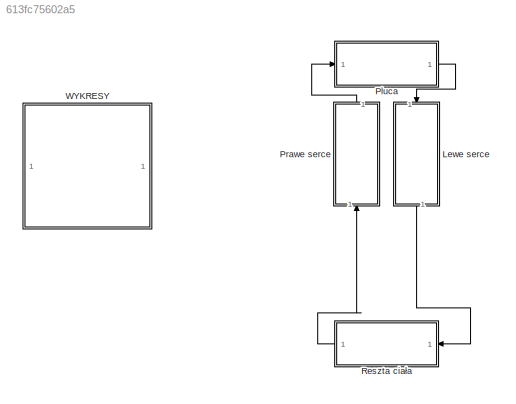
MODEL slx_613fc75602a5
KIND model
CONFIG AbsTol = 1e-06
CONFIG EnableMultiTasking = off
CONFIG FixedStep = auto
CONFIG MaxStep = 0.01
CONFIG MinStep = auto
CONFIG RelTol = 1e-06
CONFIG SampleTimeConstraint = Unconstrained
CONFIG Solver = ode23s
CONFIG SolverName = ode23s
CONFIG StartTime = 0.0
CONFIG StopTime = 11
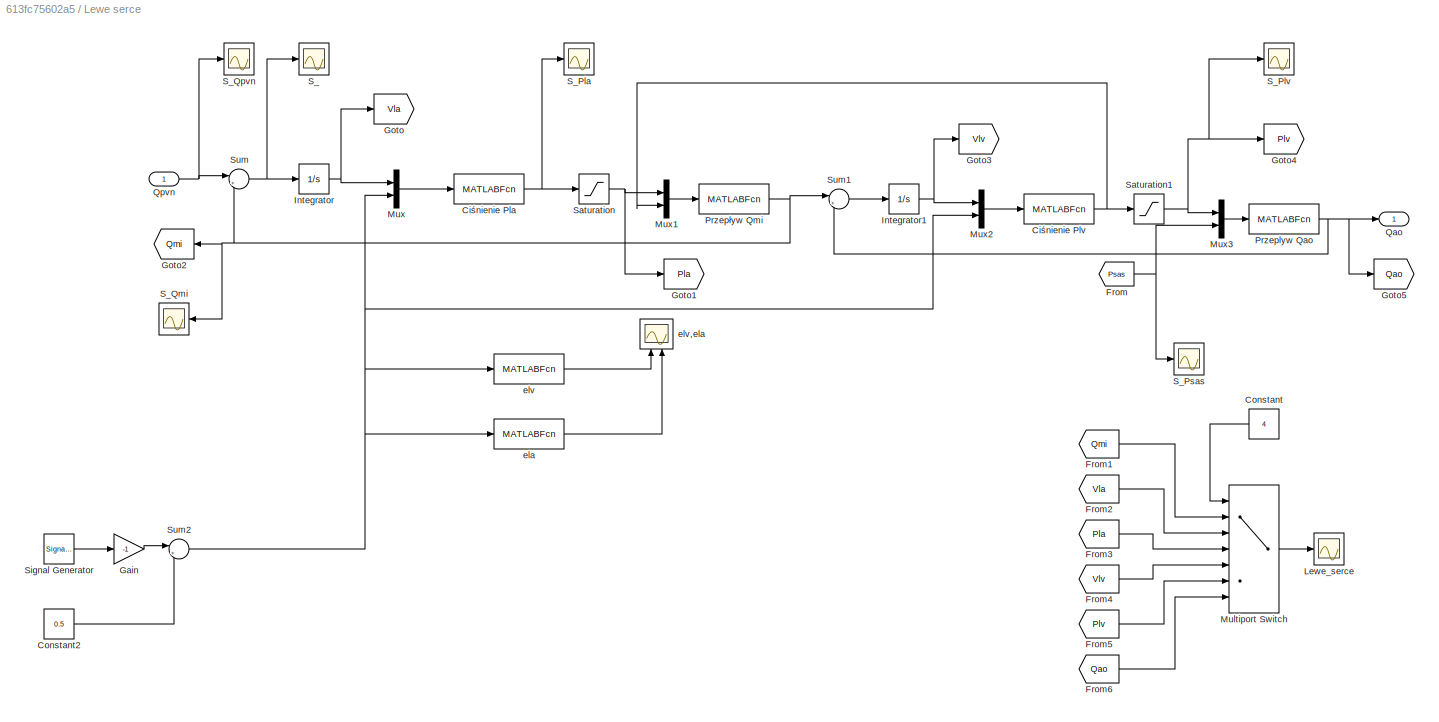
BLOCK [SubSystem] Lewe serce 
  Ports = [1, 1]
  RequestExecContextInheritance = off
BLOCK [MATLABFcn] Lewe serce /Ciśnienie Pla
  MATLABFcn = Pla_function
  Ports = [1, 1]
BLOCK [MATLABFcn] Lewe serce /Ciśnienie Plv 
  MATLABFcn = Plv_function
  Ports = [1, 1]
BLOCK [Constant] Lewe serce /Constant
  Value = 4
BLOCK [Constant] Lewe serce /Constant2
  Value = 0.5
BLOCK [From] Lewe serce /From
  GotoTag = Psas
  TagVisibility = global
BLOCK [From] Lewe serce /From1
  GotoTag = Qmi
  TagVisibility = global
BLOCK [From] Lewe serce /From2
  GotoTag = Vla
  TagVisibility = global
BLOCK [From] Lewe serce /From3
  GotoTag = Pla
  TagVisibility = global
BLOCK [From] Lewe serce /From4
  GotoTag = Vlv
  TagVisibility = global
BLOCK [From] Lewe serce /From5
  GotoTag = Plv
  TagVisibility = global
BLOCK [From] Lewe serce /From6
  GotoTag = Qao
  TagVisibility = global
BLOCK [Gain] Lewe serce /Gain
  Gain = -1
  OutDataTypeStr = Inherit: Inherit via internal rule
  ParamDataTypeStr = Inherit: Inherit via internal rule
  SaturateOnIntegerOverflow = off
BLOCK [Goto] Lewe serce /Goto
  GotoTag = Vla
  TagVisibility = global
BLOCK [Goto] Lewe serce /Goto1
  GotoTag = Pla
  TagVisibility = global
BLOCK [Goto] Lewe serce /Goto2
  GotoTag = Qmi
  TagVisibility = global
BLOCK [Goto] Lewe serce /Goto3
  GotoTag = Vlv
  TagVisibility = global
BLOCK [Goto] Lewe serce /Goto4
  GotoTag = Plv
  TagVisibility = global
BLOCK [Goto] Lewe serce /Goto5
  GotoTag = Qao
  TagVisibility = global
BLOCK [Integrator] Lewe serce /Integrator
  InitialCondition = 4
  Ports = [1, 1]
BLOCK [Integrator] Lewe serce /Integrator1
  InitialCondition = 500
  Ports = [1, 1]
BLOCK [Scope] Lewe serce /Lewe_serce
  Floating = off
  NumInputPorts = 1
  Ports = [1]
  ScopeSpecificationString = Simulink.scopes.TimeScopeBlockCfg('CurrentConfiguration', extmgr.ConfigurationSet(extmgr.Configuration('Core','General UI',true),extmgr.Configuration('Core','Source UI',true),extmgr.Configuration('Sources','WiredSimulink',true,'DataLoggingVariableName','ScopeData2'),extmgr.Configuration('Visuals','Time Domain',true,'SerializedDisplays',{struct('MinYLimReal','400.00000','MaxYLimReal','600.00000','Y...<+1441ch>
BLOCK [MultiPortSwitch] Lewe serce /Multiport Switch
  InputSameDT = off
  Inputs = 6
  OutMax = [6]
  OutMin = [1]
  Ports = [7, 1]
  SaturateOnIntegerOverflow = off
BLOCK [Mux] Lewe serce /Mux
  DisplayOption = bar
  Inputs = 2
  Ports = [2, 1]
BLOCK [Mux] Lewe serce /Mux1
  DisplayOption = bar
  Inputs = 2
  Ports = [2, 1]
BLOCK [Mux] Lewe serce /Mux2
  DisplayOption = bar
  Inputs = 2
  Ports = [2, 1]
BLOCK [Mux] Lewe serce /Mux3
  DisplayOption = bar
  Inputs = 2
  Ports = [2, 1]
BLOCK [MATLABFcn] Lewe serce /Przeplyw Qao
  MATLABFcn = Qao_function
  Ports = [1, 1]
BLOCK [MATLABFcn] Lewe serce /Przepływ Qmi
  MATLABFcn = Qmi_function
  Ports = [1, 1]
BLOCK [Outport] Lewe serce /Qao
  IconDisplay = Port number
BLOCK [Inport] Lewe serce /Qpvn
  IconDisplay = Port number
BLOCK [Scope] Lewe serce /S_
  Floating = off
  NumInputPorts = 1
  Ports = [1]
  ScopeSpecificationString = Simulink.scopes.TimeScopeBlockCfg('CurrentConfiguration', extmgr.ConfigurationSet(extmgr.Configuration('Core','General UI',true),extmgr.Configuration('Core','Source UI',true),extmgr.Configuration('Sources','WiredSimulink',true,'DataLoggingVariableName','ScopeData6'),extmgr.Configuration('Visuals','Time Domain',true,'SerializedDisplays',{struct('MinYLimReal','-15000.3206','MaxYLimReal','1669.55204'...<+1463ch>
BLOCK [Scope] Lewe serce /S_Pla
  Floating = off
  NumInputPorts = 1
  Ports = [1]
  ScopeSpecificationString = Simulink.scopes.TimeScopeBlockCfg('CurrentConfiguration', extmgr.ConfigurationSet(extmgr.Configuration('Core','General UI',true),extmgr.Configuration('Core','Source UI',true),extmgr.Configuration('Sources','WiredSimulink',true,'DataLoggingVariableName','ScopeData1'),extmgr.Configuration('Visuals','Time Domain',true,'SerializedDisplays',{struct('MinYLimReal','-1.02496','MaxYLimReal','14.64209','YLa...<+1478ch>
BLOCK [Scope] Lewe serce /S_Plv
  Floating = off
  NumInputPorts = 1
  Ports = [1]
  ScopeSpecificationString = Simulink.scopes.TimeScopeBlockCfg('CurrentConfiguration', extmgr.ConfigurationSet(extmgr.Configuration('Core','General UI',true),extmgr.Configuration('Core','Source UI',true),extmgr.Configuration('Sources','WiredSimulink',true,'DataLoggingVariableName','ScopeData1'),extmgr.Configuration('Visuals','Time Domain',true,'TimeAxisLabels','All','SerializedDisplays',{struct('MinYLimReal','40.5','MaxYLimRe...<+1443ch>
BLOCK [Scope] Lewe serce /S_Psas
  Floating = off
  NumInputPorts = 1
  Ports = [1]
  ScopeSpecificationString = Simulink.scopes.TimeScopeBlockCfg('CurrentConfiguration', extmgr.ConfigurationSet(extmgr.Configuration('Core','General UI',true),extmgr.Configuration('Core','Source UI',true),extmgr.Configuration('Sources','WiredSimulink',true,'DataLoggingVariableName','ScopeData2'),extmgr.Configuration('Visuals','Time Domain',true,'SerializedDisplays',{struct('MinYLimReal','-0.11697','MaxYLimReal','1.0527','YLabe...<+1415ch>
BLOCK [Scope] Lewe serce /S_Qmi
  Floating = off
  NumInputPorts = 1
  Ports = [1]
  ScopeSpecificationString = Simulink.scopes.TimeScopeBlockCfg('CurrentConfiguration', extmgr.ConfigurationSet(extmgr.Configuration('Core','General UI',true),extmgr.Configuration('Core','Source UI',true),extmgr.Configuration('Sources','WiredSimulink',true,'DataLoggingVariableName','ScopeData6'),extmgr.Configuration('Visuals','Time Domain',true,'SerializedDisplays',{struct('MinYLimReal','-32.25331','MaxYLimReal','290.27979','Y...<+1454ch>
BLOCK [Scope] Lewe serce /S_Qpvn
  Floating = off
  NumInputPorts = 1
  Ports = [1]
  ScopeSpecificationString = Simulink.scopes.TimeScopeBlockCfg('CurrentConfiguration', extmgr.ConfigurationSet(extmgr.Configuration('Core','General UI',true),extmgr.Configuration('Core','Source UI',true),extmgr.Configuration('Sources','WiredSimulink',true,'DataLoggingVariableName','ScopeData1'),extmgr.Configuration('Visuals','Time Domain',true,'SerializedDisplays',{struct('MinYLimReal','-15009.64219','MaxYLimReal','1753.44634...<+1487ch>
BLOCK [Saturate] Lewe serce /Saturation
  InputPortMap = u0
  LowerLimit = 0
  Ports = [1, 1]
  UpperLimit = inf
BLOCK [Saturate] Lewe serce /Saturation1
  InputPortMap = u0
  LowerLimit = 0
  Ports = [1, 1]
  UpperLimit = inf
BLOCK [SignalGenerator] Lewe serce /Signal Generator
  Amplitude = 0.5
  Ports = [0, 1]
  WaveForm = sawtooth
BLOCK [Sum] Lewe serce /Sum
  IconShape = round
  InputSameDT = off
  Inputs = |+-
  OutDataTypeStr = Inherit: Inherit via internal rule
  Ports = [2, 1]
  SaturateOnIntegerOverflow = off
BLOCK [Sum] Lewe serce /Sum1
  IconShape = round
  InputSameDT = off
  Inputs = |+-
  OutDataTypeStr = Inherit: Inherit via internal rule
  Ports = [2, 1]
  SaturateOnIntegerOverflow = off
BLOCK [Sum] Lewe serce /Sum2
  IconShape = round
  InputSameDT = off
  Inputs = |++
  OutDataTypeStr = Inherit: Inherit via internal rule
  Ports = [2, 1]
  SaturateOnIntegerOverflow = off
BLOCK [MATLABFcn] Lewe serce /ela
  MATLABFcn = ela_function
  Ports = [1, 1]
BLOCK [MATLABFcn] Lewe serce /elv
  MATLABFcn = elv_function
  Ports = [1, 1]
BLOCK [Scope] Lewe serce /elv,ela
  Floating = off
  NumInputPorts = 2
  Ports = [2]
  ScopeSpecificationString = Simulink.scopes.TimeScopeBlockCfg('CurrentConfiguration', extmgr.ConfigurationSet(extmgr.Configuration('Core','General UI',true),extmgr.Configuration('Core','Source UI',true),extmgr.Configuration('Sources','WiredSimulink',true,'DataLoggingVariableName','ScopeData5'),extmgr.Configuration('Visuals','Time Domain',true,'SerializedDisplays',{struct('MinYLimReal','-0.1999','MaxYLimReal','2.79912','YLabe...<+1393ch>
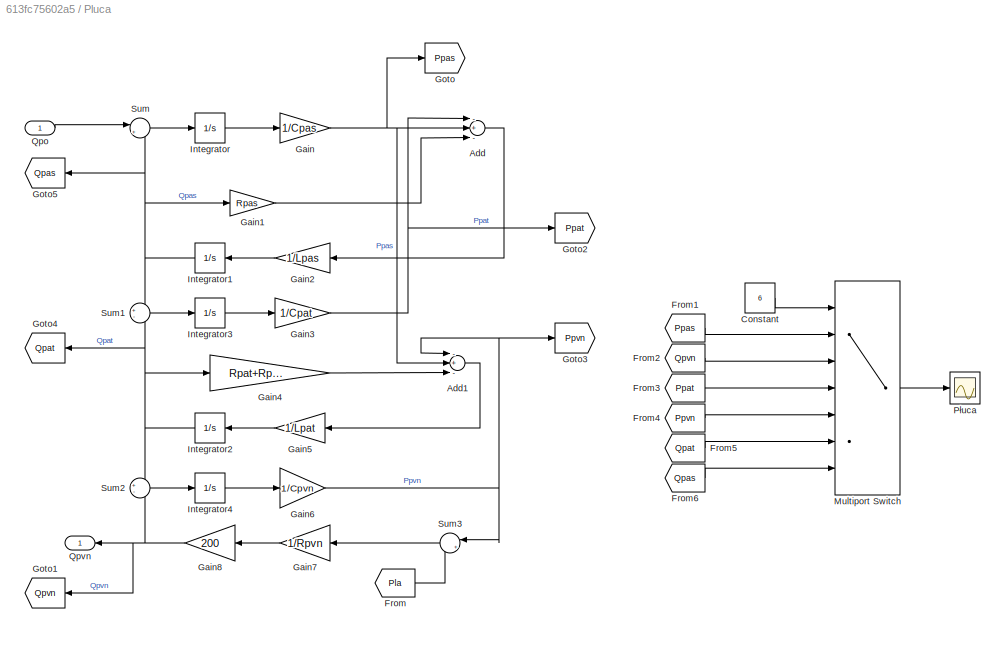
BLOCK [SubSystem] Pluca 
  Ports = [1, 1]
  RequestExecContextInheritance = off
BLOCK [Sum] Pluca /Add
  InputSameDT = off
  Inputs = -+-
  OutDataTypeStr = Inherit: Inherit via internal rule
  Ports = [3, 1]
  SaturateOnIntegerOverflow = off
BLOCK [Sum] Pluca /Add1
  InputSameDT = off
  Inputs = -+-
  OutDataTypeStr = Inherit: Inherit via internal rule
  Ports = [3, 1]
  SaturateOnIntegerOverflow = off
BLOCK [Constant] Pluca /Constant
  Value = 6
BLOCK [From] Pluca /From
  GotoTag = Pla
  TagVisibility = global
BLOCK [From] Pluca /From1
  GotoTag = Ppas
  TagVisibility = global
BLOCK [From] Pluca /From2
  GotoTag = Qpvn
  TagVisibility = global
BLOCK [From] Pluca /From3
  GotoTag = Ppat
  TagVisibility = global
BLOCK [From] Pluca /From4
  GotoTag = Ppvn
  TagVisibility = global
BLOCK [From] Pluca /From5
  GotoTag = Qpat
  TagVisibility = global
BLOCK [From] Pluca /From6
  GotoTag = Qpas
  TagVisibility = global
BLOCK [Gain] Pluca /Gain
  Gain = 1/Cpas
  OutDataTypeStr = Inherit: Inherit via internal rule
  ParamDataTypeStr = Inherit: Inherit via internal rule
  SaturateOnIntegerOverflow = off
BLOCK [Gain] Pluca /Gain1
  Gain = Rpas
  OutDataTypeStr = Inherit: Inherit via internal rule
  ParamDataTypeStr = Inherit: Inherit via internal rule
  SaturateOnIntegerOverflow = off
BLOCK [Gain] Pluca /Gain2
  Gain = 1/Lpas
  OutDataTypeStr = Inherit: Inherit via internal rule
  ParamDataTypeStr = Inherit: Inherit via internal rule
  SaturateOnIntegerOverflow = off
BLOCK [Gain] Pluca /Gain3
  Gain = 1/Cpat
  OutDataTypeStr = Inherit: Inherit via internal rule
  ParamDataTypeStr = Inherit: Inherit via internal rule
  SaturateOnIntegerOverflow = off
BLOCK [Gain] Pluca /Gain4
  Gain = Rpat+Rpar+Rpcp
  OutDataTypeStr = Inherit: Inherit via internal rule
  ParamDataTypeStr = Inherit: Inherit via internal rule
  SaturateOnIntegerOverflow = off
BLOCK [Gain] Pluca /Gain5
  Gain = 1/Lpat
  OutDataTypeStr = Inherit: Inherit via internal rule
  ParamDataTypeStr = Inherit: Inherit via internal rule
  SaturateOnIntegerOverflow = off
BLOCK [Gain] Pluca /Gain6
  Gain = 1/Cpvn
  OutDataTypeStr = Inherit: Inherit via internal rule
  ParamDataTypeStr = Inherit: Inherit via internal rule
  SaturateOnIntegerOverflow = off
BLOCK [Gain] Pluca /Gain7
  Gain = 1/Rpvn
  OutDataTypeStr = Inherit: Inherit via internal rule
  ParamDataTypeStr = Inherit: Inherit via internal rule
  SaturateOnIntegerOverflow = off
BLOCK [Gain] Pluca /Gain8
  Gain = 200
  OutDataTypeStr = Inherit: Inherit via internal rule
  ParamDataTypeStr = Inherit: Inherit via internal rule
  SaturateOnIntegerOverflow = off
BLOCK [Goto] Pluca /Goto
  GotoTag = Ppas
  TagVisibility = global
BLOCK [Goto] Pluca /Goto1
  GotoTag = Qpvn
  TagVisibility = global
BLOCK [Goto] Pluca /Goto2
  GotoTag = Ppat
  TagVisibility = global
BLOCK [Goto] Pluca /Goto3
  GotoTag = Ppvn
  TagVisibility = global
BLOCK [Goto] Pluca /Goto4
  GotoTag = Qpat
  TagVisibility = global
BLOCK [Goto] Pluca /Goto5
  GotoTag = Qpas
  TagVisibility = global
BLOCK [Integrator] Pluca /Integrator
  InitialCondition = 30
  Ports = [1, 1]
BLOCK [Integrator] Pluca /Integrator1
  Ports = [1, 1]
BLOCK [Integrator] Pluca /Integrator2
  Ports = [1, 1]
BLOCK [Integrator] Pluca /Integrator3
  InitialCondition = 30
  Ports = [1, 1]
BLOCK [Integrator] Pluca /Integrator4
  InitialCondition = 8
  Ports = [1, 1]
BLOCK [MultiPortSwitch] Pluca /Multiport Switch
  InputSameDT = off
  Inputs = 6
  OutMax = [6]
  OutMin = [1]
  Ports = [7, 1]
  SaturateOnIntegerOverflow = off
BLOCK [Scope] Pluca /Płuca
  Floating = off
  NumInputPorts = 1
  Ports = [1]
  ScopeSpecificationString = Simulink.scopes.TimeScopeBlockCfg('CurrentConfiguration', extmgr.ConfigurationSet(extmgr.Configuration('Core','General UI',true),extmgr.Configuration('Core','Source UI',true),extmgr.Configuration('Sources','WiredSimulink',true,'DataLoggingVariableName','ScopeData3'),extmgr.Configuration('Visuals','Time Domain',true,'SerializedDisplays',{struct('MinYLimReal','-2799.90325','MaxYLimReal','9613.33934'...<+1452ch>
BLOCK [Inport] Pluca /Qpo
  IconDisplay = Port number
BLOCK [Outport] Pluca /Qpvn
  IconDisplay = Port number
BLOCK [Sum] Pluca /Sum
  IconShape = round
  InputSameDT = off
  Inputs = |+-
  OutDataTypeStr = Inherit: Inherit via internal rule
  Ports = [2, 1]
  SaturateOnIntegerOverflow = off
BLOCK [Sum] Pluca /Sum1
  IconShape = round
  InputSameDT = off
  Inputs = +-
  OutDataTypeStr = Inherit: Inherit via internal rule
  Ports = [2, 1]
  SaturateOnIntegerOverflow = off
BLOCK [Sum] Pluca /Sum2
  IconShape = round
  InputSameDT = off
  Inputs = +-
  OutDataTypeStr = Inherit: Inherit via internal rule
  Ports = [2, 1]
  SaturateOnIntegerOverflow = off
BLOCK [Sum] Pluca /Sum3
  IconShape = round
  InputSameDT = off
  Inputs = |+-
  OutDataTypeStr = Inherit: Inherit via internal rule
  Ports = [2, 1]
  SaturateOnIntegerOverflow = off
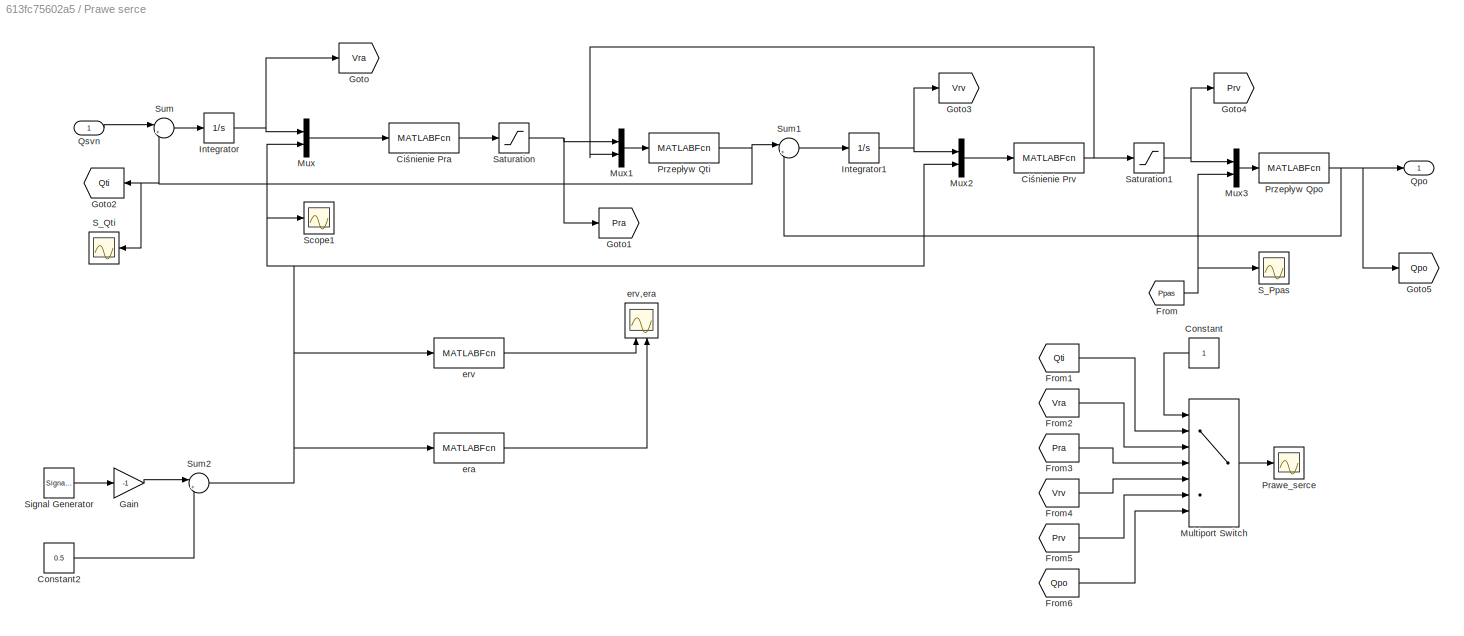
BLOCK [SubSystem] Prawe serce 
  Ports = [1, 1]
  RequestExecContextInheritance = off
BLOCK [MATLABFcn] Prawe serce /Ciśnienie Pra 
  MATLABFcn = Pra_function
  Ports = [1, 1]
BLOCK [MATLABFcn] Prawe serce /Ciśnienie Prv
  MATLABFcn = Prv_function
  Ports = [1, 1]
BLOCK [Constant] Prawe serce /Constant
BLOCK [Constant] Prawe serce /Constant2
  Value = 0.5
BLOCK [From] Prawe serce /From
  GotoTag = Ppas
  TagVisibility = global
BLOCK [From] Prawe serce /From1
  GotoTag = Qti
  TagVisibility = global
BLOCK [From] Prawe serce /From2
  GotoTag = Vra
  TagVisibility = global
BLOCK [From] Prawe serce /From3
  GotoTag = Pra
  TagVisibility = global
BLOCK [From] Prawe serce /From4
  GotoTag = Vrv
  TagVisibility = global
BLOCK [From] Prawe serce /From5
  GotoTag = Prv
  TagVisibility = global
BLOCK [From] Prawe serce /From6
  GotoTag = Qpo
  TagVisibility = global
BLOCK [Gain] Prawe serce /Gain
  Gain = -1
  OutDataTypeStr = Inherit: Inherit via internal rule
  ParamDataTypeStr = Inherit: Inherit via internal rule
  SaturateOnIntegerOverflow = off
BLOCK [Goto] Prawe serce /Goto
  GotoTag = Vra
  TagVisibility = global
BLOCK [Goto] Prawe serce /Goto1
  GotoTag = Pra
  TagVisibility = global
BLOCK [Goto] Prawe serce /Goto2
  GotoTag = Qti
  TagVisibility = global
BLOCK [Goto] Prawe serce /Goto3
  GotoTag = Vrv
  TagVisibility = global
BLOCK [Goto] Prawe serce /Goto4
  GotoTag = Prv
  TagVisibility = global
BLOCK [Goto] Prawe serce /Goto5
  GotoTag = Qpo
  TagVisibility = global
BLOCK [Integrator] Prawe serce /Integrator
  InitialCondition = 4
  Ports = [1, 1]
BLOCK [Integrator] Prawe serce /Integrator1
  InitialCondition = 400
  Ports = [1, 1]
BLOCK [MultiPortSwitch] Prawe serce /Multiport Switch
  InputSameDT = off
  Inputs = 6
  OutMax = [6]
  OutMin = [1]
  Ports = [7, 1]
  SaturateOnIntegerOverflow = off
BLOCK [Mux] Prawe serce /Mux
  DisplayOption = bar
  Inputs = 2
  Ports = [2, 1]
BLOCK [Mux] Prawe serce /Mux1
  DisplayOption = bar
  Inputs = 2
  Ports = [2, 1]
BLOCK [Mux] Prawe serce /Mux2
  DisplayOption = bar
  Inputs = 2
  Ports = [2, 1]
BLOCK [Mux] Prawe serce /Mux3
  DisplayOption = bar
  Inputs = 2
  Ports = [2, 1]
BLOCK [Scope] Prawe serce /Prawe_serce
  Floating = off
  NumInputPorts = 1
  Ports = [1]
  ScopeSpecificationString = Simulink.scopes.TimeScopeBlockCfg('CurrentConfiguration', extmgr.ConfigurationSet(extmgr.Configuration('Core','General UI',true),extmgr.Configuration('Core','Source UI',true),extmgr.Configuration('Sources','WiredSimulink',true,'DataLoggingVariableName','ScopeData1'),extmgr.Configuration('Visuals','Time Domain',true,'SerializedDisplays',{struct('MinYLimReal','-31.62278','MaxYLimReal','284.60499','Y...<+1458ch>
BLOCK [MATLABFcn] Prawe serce /Przepływ Qpo
  MATLABFcn = Qpo_function
  Ports = [1, 1]
BLOCK [MATLABFcn] Prawe serce /Przepływ Qti
  MATLABFcn = Qti_function
  Ports = [1, 1]
BLOCK [Outport] Prawe serce /Qpo
  IconDisplay = Port number
BLOCK [Inport] Prawe serce /Qsvn
  IconDisplay = Port number
BLOCK [Scope] Prawe serce /S_Ppas
  Floating = off
  NumInputPorts = 1
  Ports = [1]
  ScopeSpecificationString = Simulink.scopes.TimeScopeBlockCfg('CurrentConfiguration', extmgr.ConfigurationSet(extmgr.Configuration('Core','General UI',true),extmgr.Configuration('Core','Source UI',true),extmgr.Configuration('Sources','WiredSimulink',true,'DataLoggingVariableName','ScopeData4'),extmgr.Configuration('Visuals','Time Domain',true,'SerializedDisplays',{struct('MinYLimReal','27.13567','MaxYLimReal','30.99403','YLa...<+1446ch>
BLOCK [Scope] Prawe serce /S_Qti
  Floating = off
  NumInputPorts = 1
  Ports = [1]
  ScopeSpecificationString = Simulink.scopes.TimeScopeBlockCfg('CurrentConfiguration', extmgr.ConfigurationSet(extmgr.Configuration('Core','General UI',true),extmgr.Configuration('Core','Source UI',true),extmgr.Configuration('Sources','WiredSimulink',true,'DataLoggingVariableName','ScopeData1'),extmgr.Configuration('Visuals','Time Domain',true,'SerializedDisplays',{struct('MinYLimReal','-60.43444','MaxYLimReal','543.90996','Y...<+1454ch>
BLOCK [Saturate] Prawe serce /Saturation
  InputPortMap = u0
  LinearizeAsGain = off
  LowerLimit = 0
  Ports = [1, 1]
  UpperLimit = inf
BLOCK [Saturate] Prawe serce /Saturation1
  InputPortMap = u0
  LowerLimit = 0
  Ports = [1, 1]
  UpperLimit = inf
BLOCK [Scope] Prawe serce /Scope1
  Floating = off
  NumInputPorts = 1
  Ports = [1]
  ScopeSpecificationString = Simulink.scopes.TimeScopeBlockCfg('CurrentConfiguration', extmgr.ConfigurationSet(extmgr.Configuration('Core','General UI',true),extmgr.Configuration('Core','Source UI',true),extmgr.Configuration('Sources','WiredSimulink',true,'DataLoggingVariableName','ScopeData1'),extmgr.Configuration('Visuals','Time Domain',true,'SerializedDisplays',{struct('MinYLimReal','-1.00000','MaxYLimReal','1.00000','YLab...<+1426ch>
BLOCK [SignalGenerator] Prawe serce /Signal Generator
  Amplitude = 0.5
  Ports = [0, 1]
  WaveForm = sawtooth
BLOCK [Sum] Prawe serce /Sum
  IconShape = round
  InputSameDT = off
  Inputs = |+-
  OutDataTypeStr = Inherit: Inherit via internal rule
  Ports = [2, 1]
  SaturateOnIntegerOverflow = off
BLOCK [Sum] Prawe serce /Sum1
  IconShape = round
  InputSameDT = off
  Inputs = |+-
  OutDataTypeStr = Inherit: Inherit via internal rule
  Ports = [2, 1]
  SaturateOnIntegerOverflow = off
BLOCK [Sum] Prawe serce /Sum2
  IconShape = round
  InputSameDT = off
  Inputs = |++
  OutDataTypeStr = Inherit: Inherit via internal rule
  Ports = [2, 1]
  SaturateOnIntegerOverflow = off
BLOCK [MATLABFcn] Prawe serce /era
  MATLABFcn = era_function
  Ports = [1, 1]
BLOCK [MATLABFcn] Prawe serce /erv
  MATLABFcn = erv_function
  Ports = [1, 1]
BLOCK [Scope] Prawe serce /erv,era
  Floating = off
  NumInputPorts = 2
  Ports = [2]
  ScopeSpecificationString = Simulink.scopes.TimeScopeBlockCfg('CurrentConfiguration', extmgr.ConfigurationSet(extmgr.Configuration('Core','General UI',true),extmgr.Configuration('Core','Source UI',true),extmgr.Configuration('Sources','WiredSimulink',true,'DataLoggingVariableName','ScopeData1'),extmgr.Configuration('Visuals','Time Domain',true,'SerializedDisplays',{struct('MinYLimReal','0.09375','MaxYLimReal','0.15625','YLabe...<+1399ch>
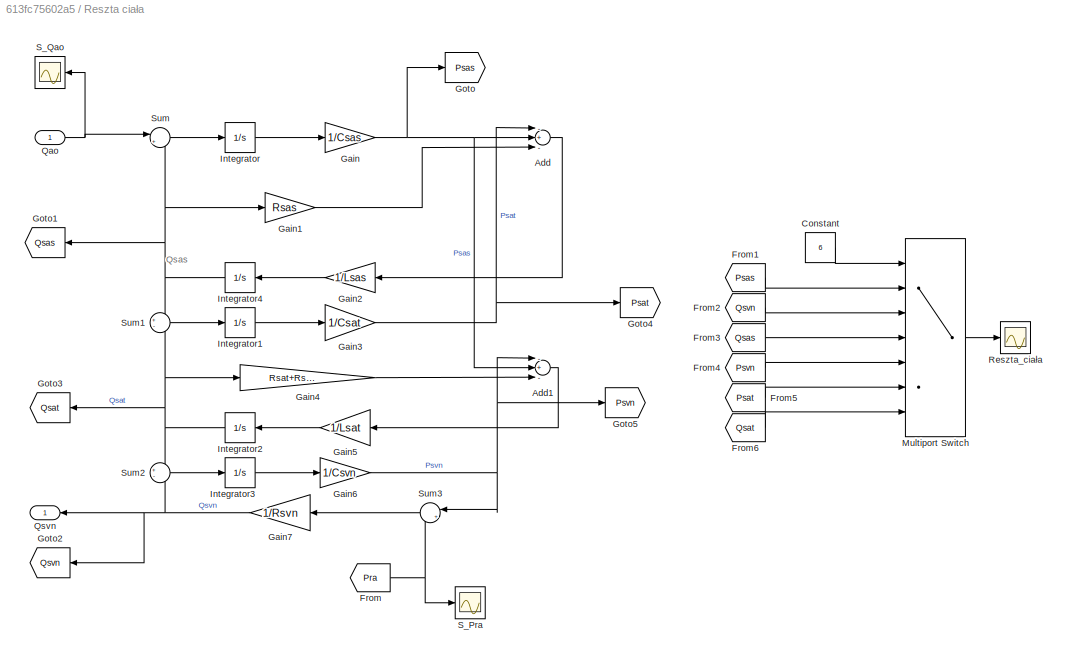
BLOCK [SubSystem] Reszta ciała 
  Ports = [1, 1]
  RequestExecContextInheritance = off
BLOCK [Sum] Reszta ciała /Add
  InputSameDT = off
  Inputs = -+-
  OutDataTypeStr = Inherit: Inherit via internal rule
  Ports = [3, 1]
  SaturateOnIntegerOverflow = off
BLOCK [Sum] Reszta ciała /Add1
  InputSameDT = off
  Inputs = -+-
  OutDataTypeStr = Inherit: Inherit via internal rule
  Ports = [3, 1]
  SaturateOnIntegerOverflow = off
BLOCK [Constant] Reszta ciała /Constant
  Value = 6
BLOCK [From] Reszta ciała /From
  GotoTag = Pra
  TagVisibility = global
BLOCK [From] Reszta ciała /From1
  GotoTag = Psas
  TagVisibility = global
BLOCK [From] Reszta ciała /From2
  GotoTag = Qsvn
  TagVisibility = global
BLOCK [From] Reszta ciała /From3
  GotoTag = Qsas
  TagVisibility = global
BLOCK [From] Reszta ciała /From4
  GotoTag = Psvn
  TagVisibility = global
BLOCK [From] Reszta ciała /From5
  GotoTag = Psat
  TagVisibility = global
BLOCK [From] Reszta ciała /From6
  GotoTag = Qsat
  TagVisibility = global
BLOCK [Gain] Reszta ciała /Gain
  Gain = 1/Csas
  OutDataTypeStr = Inherit: Inherit via internal rule
  ParamDataTypeStr = Inherit: Inherit via internal rule
  SaturateOnIntegerOverflow = off
BLOCK [Gain] Reszta ciała /Gain1
  Gain = Rsas
  OutDataTypeStr = Inherit: Inherit via internal rule
  ParamDataTypeStr = Inherit: Inherit via internal rule
  SaturateOnIntegerOverflow = off
BLOCK [Gain] Reszta ciała /Gain2
  Gain = 1/Lsas
  OutDataTypeStr = Inherit: Inherit via internal rule
  ParamDataTypeStr = Inherit: Inherit via internal rule
  SaturateOnIntegerOverflow = off
BLOCK [Gain] Reszta ciała /Gain3
  Gain = 1/Csat
  OutDataTypeStr = Inherit: Inherit via internal rule
  ParamDataTypeStr = Inherit: Inherit via internal rule
  SaturateOnIntegerOverflow = off
BLOCK [Gain] Reszta ciała /Gain4
  Gain = Rsat+Rsar+Rscp
  OutDataTypeStr = Inherit: Inherit via internal rule
  ParamDataTypeStr = Inherit: Inherit via internal rule
  SaturateOnIntegerOverflow = off
BLOCK [Gain] Reszta ciała /Gain5
  Gain = 1/Lsat
  OutDataTypeStr = Inherit: Inherit via internal rule
  ParamDataTypeStr = Inherit: Inherit via internal rule
  SaturateOnIntegerOverflow = off
BLOCK [Gain] Reszta ciała /Gain6
  Gain = 1/Csvn
  OutDataTypeStr = Inherit: Inherit via internal rule
  ParamDataTypeStr = Inherit: Inherit via internal rule
  SaturateOnIntegerOverflow = off
BLOCK [Gain] Reszta ciała /Gain7
  Gain = 1/Rsvn
  OutDataTypeStr = Inherit: Inherit via internal rule
  ParamDataTypeStr = Inherit: Inherit via internal rule
  SaturateOnIntegerOverflow = off
BLOCK [Goto] Reszta ciała /Goto
  GotoTag = Psas
  TagVisibility = global
BLOCK [Goto] Reszta ciała /Goto1
  GotoTag = Qsas
  TagVisibility = global
BLOCK [Goto] Reszta ciała /Goto2
  GotoTag = Qsvn
  TagVisibility = global
BLOCK [Goto] Reszta ciała /Goto3
  GotoTag = Qsat
  TagVisibility = global
BLOCK [Goto] Reszta ciała /Goto4
  GotoTag = Psat
  TagVisibility = global
BLOCK [Goto] Reszta ciała /Goto5
  GotoTag = Psvn
  TagVisibility = global
BLOCK [Integrator] Reszta ciała /Integrator
  InitialCondition = 100
  Ports = [1, 1]
BLOCK [Integrator] Reszta ciała /Integrator1
  InitialCondition = 100
  Ports = [1, 1]
BLOCK [Integrator] Reszta ciała /Integrator2
  Ports = [1, 1]
BLOCK [Integrator] Reszta ciała /Integrator3
  InitialCondition = 4
  Ports = [1, 1]
BLOCK [Integrator] Reszta ciała /Integrator4
  Ports = [1, 1]
BLOCK [MultiPortSwitch] Reszta ciała /Multiport Switch
  InputSameDT = off
  Inputs = 6
  OutMax = [6]
  OutMin = [1]
  Ports = [7, 1]
  SaturateOnIntegerOverflow = off
BLOCK [Inport] Reszta ciała /Qao
  IconDisplay = Port number
BLOCK [Outport] Reszta ciała /Qsvn
  IconDisplay = Port number
BLOCK [Scope] Reszta ciała /Reszta_ciała
  Floating = off
  NumInputPorts = 1
  Ports = [1]
  ScopeSpecificationString = Simulink.scopes.TimeScopeBlockCfg('CurrentConfiguration', extmgr.ConfigurationSet(extmgr.Configuration('Core','General UI',true),extmgr.Configuration('Core','Source UI',true),extmgr.Configuration('Sources','WiredSimulink',true,'DataLoggingVariableName','ScopeData4'),extmgr.Configuration('Visuals','Time Domain',true,'SerializedDisplays',{struct('MinYLimReal','250.00000','MaxYLimReal','2250.00000','...<+1447ch>
BLOCK [Scope] Reszta ciała /S_Pra
  Floating = off
  NumInputPorts = 1
  Ports = [1]
  ScopeSpecificationString = Simulink.scopes.TimeScopeBlockCfg('CurrentConfiguration', extmgr.ConfigurationSet(extmgr.Configuration('Core','General UI',true),extmgr.Configuration('Core','Source UI',true),extmgr.Configuration('Sources','WiredSimulink',true,'DataLoggingVariableName','ScopeData3'),extmgr.Configuration('Visuals','Time Domain',true,'SerializedDisplays',{struct('MinYLimReal','-0.61525','MaxYLimReal','14.77256','YLa...<+1427ch>
BLOCK [Scope] Reszta ciała /S_Qao
  Floating = off
  NumInputPorts = 1
  Ports = [1]
  ScopeSpecificationString = Simulink.scopes.TimeScopeBlockCfg('CurrentConfiguration', extmgr.ConfigurationSet(extmgr.Configuration('Core','General UI',true),extmgr.Configuration('Core','Source UI',true),extmgr.Configuration('Sources','WiredSimulink',true,'DataLoggingVariableName','ScopeData2'),extmgr.Configuration('Visuals','Time Domain',true,'SerializedDisplays',{struct('MinYLimReal','-1.00000','MaxYLimReal','1.00000','YLab...<+1416ch>
BLOCK [Sum] Reszta ciała /Sum
  IconShape = round
  InputSameDT = off
  Inputs = |+-
  OutDataTypeStr = Inherit: Inherit via internal rule
  Ports = [2, 1]
  SaturateOnIntegerOverflow = off
BLOCK [Sum] Reszta ciała /Sum1
  IconShape = round
  InputSameDT = off
  Inputs = +-
  OutDataTypeStr = Inherit: Inherit via internal rule
  Ports = [2, 1]
  SaturateOnIntegerOverflow = off
BLOCK [Sum] Reszta ciała /Sum2
  IconShape = round
  InputSameDT = off
  Inputs = +-
  OutDataTypeStr = Inherit: Inherit via internal rule
  Ports = [2, 1]
  SaturateOnIntegerOverflow = off
BLOCK [Sum] Reszta ciała /Sum3
  IconShape = round
  InputSameDT = off
  Inputs = |+-
  OutDataTypeStr = Inherit: Inherit via internal rule
  Ports = [2, 1]
  SaturateOnIntegerOverflow = off
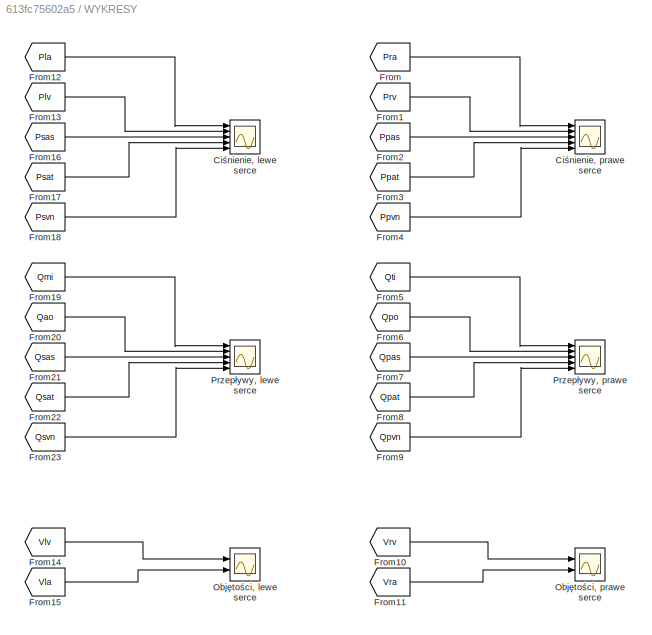
BLOCK [SubSystem] WYKRESY
  Ports = []
  RequestExecContextInheritance = off
BLOCK [Scope] WYKRESY/Ciśnienie, lewe serce
  Floating = off
  NumInputPorts = 5
  Ports = [5]
  ScopeSpecificationString = Simulink.scopes.TimeScopeBlockCfg('CurrentConfiguration', extmgr.ConfigurationSet(extmgr.Configuration('Core','General UI',true),extmgr.Configuration('Core','Source UI',true),extmgr.Configuration('Sources','WiredSimulink',true,'DataLoggingVariableName','ScopeData4','DataLoggingLimitDataPoints',true),extmgr.Configuration('Visuals','Time Domain',true,'SerializedDisplays',{struct('MinYLimReal','-20.4...<+1723ch>
BLOCK [Scope] WYKRESY/Ciśnienie, prawe serce
  Floating = off
  NumInputPorts = 5
  Ports = [5]
  ScopeSpecificationString = Simulink.scopes.TimeScopeBlockCfg('CurrentConfiguration', extmgr.ConfigurationSet(extmgr.Configuration('Core','General UI',true),extmgr.Configuration('Core','Source UI',true),extmgr.Configuration('Sources','WiredSimulink',true,'DataLoggingVariableName','ScopeData1'),extmgr.Configuration('Visuals','Time Domain',true,'SerializedDisplays',{struct('MinYLimReal','-0.98558','MaxYLimReal','51.22334','YLa...<+1584ch>
BLOCK [From] WYKRESY/From
  GotoTag = Pra
  TagVisibility = global
BLOCK [From] WYKRESY/From1
  GotoTag = Prv
  TagVisibility = global
BLOCK [From] WYKRESY/From10
  GotoTag = Vrv
  TagVisibility = global
BLOCK [From] WYKRESY/From11
  GotoTag = Vra
  TagVisibility = global
BLOCK [From] WYKRESY/From12
  GotoTag = Pla
  TagVisibility = global
BLOCK [From] WYKRESY/From13
  GotoTag = Plv
  TagVisibility = global
BLOCK [From] WYKRESY/From14
  GotoTag = Vlv
  TagVisibility = global
BLOCK [From] WYKRESY/From15
  GotoTag = Vla
  TagVisibility = global
BLOCK [From] WYKRESY/From16
  GotoTag = Psas
  TagVisibility = global
BLOCK [From] WYKRESY/From17
  GotoTag = Psat
  TagVisibility = global
BLOCK [From] WYKRESY/From18
  GotoTag = Psvn
  TagVisibility = global
BLOCK [From] WYKRESY/From19
  GotoTag = Qmi
  TagVisibility = global
BLOCK [From] WYKRESY/From2
  GotoTag = Ppas
  TagVisibility = global
BLOCK [From] WYKRESY/From20
  GotoTag = Qao
  TagVisibility = global
BLOCK [From] WYKRESY/From21
  GotoTag = Qsas
  TagVisibility = global
BLOCK [From] WYKRESY/From22
  GotoTag = Qsat
  TagVisibility = global
BLOCK [From] WYKRESY/From23
  GotoTag = Qsvn
  TagVisibility = global
BLOCK [From] WYKRESY/From3
  GotoTag = Ppat
  TagVisibility = global
BLOCK [From] WYKRESY/From4
  GotoTag = Ppvn
  TagVisibility = global
BLOCK [From] WYKRESY/From5
  GotoTag = Qti
  TagVisibility = global
BLOCK [From] WYKRESY/From6
  GotoTag = Qpo
  TagVisibility = global
BLOCK [From] WYKRESY/From7
  GotoTag = Qpas
  TagVisibility = global
BLOCK [From] WYKRESY/From8
  GotoTag = Qpat
  TagVisibility = global
BLOCK [From] WYKRESY/From9
  GotoTag = Qpvn
  TagVisibility = global
BLOCK [Scope] WYKRESY/Objętości, lewe serce
  Floating = off
  NumInputPorts = 2
  Ports = [2]
  ScopeSpecificationString = Simulink.scopes.TimeScopeBlockCfg('CurrentConfiguration', extmgr.ConfigurationSet(extmgr.Configuration('Core','General UI',true),extmgr.Configuration('Core','Source UI',true),extmgr.Configuration('Sources','WiredSimulink',true,'DataLoggingVariableName','ScopeData6'),extmgr.Configuration('Visuals','Time Domain',true,'SerializedDisplays',{struct('MinYLimReal','63.68059','MaxYLimReal','126.17595','YL...<+1506ch>
BLOCK [Scope] WYKRESY/Objętości, prawe serce
  Floating = off
  NumInputPorts = 2
  Ports = [2]
  ScopeSpecificationString = Simulink.scopes.TimeScopeBlockCfg('CurrentConfiguration', extmgr.ConfigurationSet(extmgr.Configuration('Core','General UI',true),extmgr.Configuration('Core','Source UI',true),extmgr.Configuration('Sources','WiredSimulink',true,'DataLoggingVariableName','ScopeData3'),extmgr.Configuration('Visuals','Time Domain',true,'SerializedDisplays',{struct('MinYLimReal','-4.38166','MaxYLimReal','148.97433','YL...<+1504ch>
BLOCK [Scope] WYKRESY/Przepływy, lewe serce
  Floating = off
  NumInputPorts = 5
  Ports = [5]
  ScopeSpecificationString = Simulink.scopes.TimeScopeBlockCfg('CurrentConfiguration', extmgr.ConfigurationSet(extmgr.Configuration('Core','General UI',true),extmgr.Configuration('Core','Source UI',true),extmgr.Configuration('Sources','WiredSimulink',true,'DataLoggingVariableName','ScopeData5'),extmgr.Configuration('Visuals','Time Domain',true,'SerializedDisplays',{struct('MinYLimReal','164.36644','MaxYLimReal','909.73551','Y...<+1622ch>
BLOCK [Scope] WYKRESY/Przepływy, prawe serce
  Floating = off
  NumInputPorts = 5
  Ports = [5]
  ScopeSpecificationString = Simulink.scopes.TimeScopeBlockCfg('CurrentConfiguration', extmgr.ConfigurationSet(extmgr.Configuration('Core','General UI',true),extmgr.Configuration('Core','Source UI',true),extmgr.Configuration('Sources','WiredSimulink',true,'DataLoggingVariableName','ScopeData2'),extmgr.Configuration('Visuals','Time Domain',true,'SerializedDisplays',{struct('MinYLimReal','-264.47699','MaxYLimReal','568.99989','...<+1646ch>
ANNOTATION Reszta ciała : Qsas
NET Lewe serce /Ciśnienie Pla:1 -> Lewe serce /S_Pla:1, Lewe serce /Saturation:1
NET Lewe serce /Ciśnienie Plv :1 -> Lewe serce /Mux1:2, Lewe serce /Saturation1:1
LINE Lewe serce /Constant2:1 -> Lewe serce /Sum2:2
LINE Lewe serce /Constant:1 -> Lewe serce /Multiport Switch:1
LINE Lewe serce /From1:1 -> Lewe serce /Multiport Switch:2
LINE Lewe serce /From2:1 -> Lewe serce /Multiport Switch:3
LINE Lewe serce /From3:1 -> Lewe serce /Multiport Switch:4
LINE Lewe serce /From4:1 -> Lewe serce /Multiport Switch:5
LINE Lewe serce /From5:1 -> Lewe serce /Multiport Switch:6
LINE Lewe serce /From6:1 -> Lewe serce /Multiport Switch:7
NET Lewe serce /From:1 -> Lewe serce /Mux3:2, Lewe serce /S_Psas:1
LINE Lewe serce /Gain:1 -> Lewe serce /Sum2:1
NET Lewe serce /Integrator1:1 -> Lewe serce /Goto3:1, Lewe serce /Mux2:1
NET Lewe serce /Integrator:1 -> Lewe serce /Goto:1, Lewe serce /Mux:1
LINE Lewe serce /Multiport Switch:1 -> Lewe serce /Lewe_serce:1
LINE Lewe serce /Mux1:1 -> Lewe serce /Przepływ Qmi:1
LINE Lewe serce /Mux2:1 -> Lewe serce /Ciśnienie Plv :1
LINE Lewe serce /Mux3:1 -> Lewe serce /Przeplyw Qao:1
LINE Lewe serce /Mux:1 -> Lewe serce /Ciśnienie Pla:1
NET Lewe serce /Przeplyw Qao:1 -> Lewe serce /Goto5:1, Lewe serce /Qao:1, Lewe serce /Sum1:2
NET Lewe serce /Przepływ Qmi:1 -> Lewe serce /Goto2:1, Lewe serce /S_Qmi:1, Lewe serce /Sum1:1, Lewe serce /Sum:2
NET Lewe serce /Qpvn:1 -> Lewe serce /S_Qpvn:1, Lewe serce /Sum:1
NET Lewe serce /Saturation1:1 -> Lewe serce /Goto4:1, Lewe serce /Mux3:1, Lewe serce /S_Plv:1
NET Lewe serce /Saturation:1 -> Lewe serce /Goto1:1, Lewe serce /Mux1:1
LINE Lewe serce /Signal Generator:1 -> Lewe serce /Gain:1
LINE Lewe serce /Sum1:1 -> Lewe serce /Integrator1:1
NET Lewe serce /Sum2:1 -> Lewe serce /Mux2:2, Lewe serce /Mux:2, Lewe serce /ela:1, Lewe serce /elv:1
NET Lewe serce /Sum:1 -> Lewe serce /Integrator:1, Lewe serce /S_:1
LINE Lewe serce /ela:1 -> Lewe serce /elv,ela:2
LINE Lewe serce /elv:1 -> Lewe serce /elv,ela:1
LINE Lewe serce :1 -> Reszta ciała :1
LINE Pluca /Add1:1 -> Pluca /Gain5:1
LINE Pluca /Add:1 -> Pluca /Gain2:1
LINE Pluca /Constant:1 -> Pluca /Multiport Switch:1
LINE Pluca /From1:1 -> Pluca /Multiport Switch:2
LINE Pluca /From2:1 -> Pluca /Multiport Switch:3
LINE Pluca /From3:1 -> Pluca /Multiport Switch:4
LINE Pluca /From4:1 -> Pluca /Multiport Switch:5
LINE Pluca /From5:1 -> Pluca /Multiport Switch:6
LINE Pluca /From6:1 -> Pluca /Multiport Switch:7
LINE Pluca /From:1 -> Pluca /Sum3:2
LINE Pluca /Gain1:1 -> Pluca /Add:3
LINE Pluca /Gain2:1 -> Pluca /Integrator1:1
NET Pluca /Gain3:1 -> Pluca /Add:1, Pluca /Goto2:1
LINE Pluca /Gain4:1 -> Pluca /Add1:3
LINE Pluca /Gain5:1 -> Pluca /Integrator2:1
NET Pluca /Gain6:1 -> Pluca /Add1:1, Pluca /Goto3:1, Pluca /Sum3:1
LINE Pluca /Gain7:1 -> Pluca /Gain8:1
NET Pluca /Gain8:1 -> Pluca /Goto1:1, Pluca /Qpvn:1, Pluca /Sum2:2
NET Pluca /Gain:1 -> Pluca /Add1:2, Pluca /Add:2, Pluca /Goto:1
NET Pluca /Integrator1:1 -> Pluca /Gain1:1, Pluca /Goto5:1, Pluca /Sum1:1, Pluca /Sum:2
NET Pluca /Integrator2:1 -> Pluca /Gain4:1, Pluca /Goto4:1, Pluca /Sum1:2, Pluca /Sum2:1
LINE Pluca /Integrator3:1 -> Pluca /Gain3:1
LINE Pluca /Integrator4:1 -> Pluca /Gain6:1
LINE Pluca /Integrator:1 -> Pluca /Gain:1
LINE Pluca /Multiport Switch:1 -> Pluca /Płuca:1
LINE Pluca /Qpo:1 -> Pluca /Sum:1
LINE Pluca /Sum1:1 -> Pluca /Integrator3:1
LINE Pluca /Sum2:1 -> Pluca /Integrator4:1
LINE Pluca /Sum3:1 -> Pluca /Gain7:1
LINE Pluca /Sum:1 -> Pluca /Integrator:1
LINE Pluca :1 -> Lewe serce :1
LINE Prawe serce /Ciśnienie Pra :1 -> Prawe serce /Saturation:1
NET Prawe serce /Ciśnienie Prv:1 -> Prawe serce /Mux1:2, Prawe serce /Saturation1:1
LINE Prawe serce /Constant2:1 -> Prawe serce /Sum2:2
LINE Prawe serce /Constant:1 -> Prawe serce /Multiport Switch:1
LINE Prawe serce /From1:1 -> Prawe serce /Multiport Switch:2
LINE Prawe serce /From2:1 -> Prawe serce /Multiport Switch:3
LINE Prawe serce /From3:1 -> Prawe serce /Multiport Switch:4
LINE Prawe serce /From4:1 -> Prawe serce /Multiport Switch:5
LINE Prawe serce /From5:1 -> Prawe serce /Multiport Switch:6
LINE Prawe serce /From6:1 -> Prawe serce /Multiport Switch:7
NET Prawe serce /From:1 -> Prawe serce /Mux3:2, Prawe serce /S_Ppas:1
LINE Prawe serce /Gain:1 -> Prawe serce /Sum2:1
NET Prawe serce /Integrator1:1 -> Prawe serce /Goto3:1, Prawe serce /Mux2:1
NET Prawe serce /Integrator:1 -> Prawe serce /Goto:1, Prawe serce /Mux:1
LINE Prawe serce /Multiport Switch:1 -> Prawe serce /Prawe_serce:1
LINE Prawe serce /Mux1:1 -> Prawe serce /Przepływ Qti:1
LINE Prawe serce /Mux2:1 -> Prawe serce /Ciśnienie Prv:1
LINE Prawe serce /Mux3:1 -> Prawe serce /Przepływ Qpo:1
LINE Prawe serce /Mux:1 -> Prawe serce /Ciśnienie Pra :1
NET Prawe serce /Przepływ Qpo:1 -> Prawe serce /Goto5:1, Prawe serce /Qpo:1, Prawe serce /Sum1:2
NET Prawe serce /Przepływ Qti:1 -> Prawe serce /Goto2:1, Prawe serce /S_Qti:1, Prawe serce /Sum1:1, Prawe serce /Sum:2
LINE Prawe serce /Qsvn:1 -> Prawe serce /Sum:1
NET Prawe serce /Saturation1:1 -> Prawe serce /Goto4:1, Prawe serce /Mux3:1
NET Prawe serce /Saturation:1 -> Prawe serce /Goto1:1, Prawe serce /Mux1:1
LINE Prawe serce /Signal Generator:1 -> Prawe serce /Gain:1
LINE Prawe serce /Sum1:1 -> Prawe serce /Integrator1:1
NET Prawe serce /Sum2:1 -> Prawe serce /Mux2:2, Prawe serce /Mux:2, Prawe serce /Scope1:1, Prawe serce /era:1, Prawe serce /erv:1
LINE Prawe serce /Sum:1 -> Prawe serce /Integrator:1
LINE Prawe serce /era:1 -> Prawe serce /erv,era:2
LINE Prawe serce /erv:1 -> Prawe serce /erv,era:1
LINE Prawe serce :1 -> Pluca :1
LINE Reszta ciała /Add1:1 -> Reszta ciała /Gain5:1
LINE Reszta ciała /Add:1 -> Reszta ciała /Gain2:1
LINE Reszta ciała /Constant:1 -> Reszta ciała /Multiport Switch:1
LINE Reszta ciała /From1:1 -> Reszta ciała /Multiport Switch:2
LINE Reszta ciała /From2:1 -> Reszta ciała /Multiport Switch:3
LINE Reszta ciała /From3:1 -> Reszta ciała /Multiport Switch:4
LINE Reszta ciała /From4:1 -> Reszta ciała /Multiport Switch:5
LINE Reszta ciała /From5:1 -> Reszta ciała /Multiport Switch:6
LINE Reszta ciała /From6:1 -> Reszta ciała /Multiport Switch:7
NET Reszta ciała /From:1 -> Reszta ciała /S_Pra:1, Reszta ciała /Sum3:2
LINE Reszta ciała /Gain1:1 -> Reszta ciała /Add:3
LINE Reszta ciała /Gain2:1 -> Reszta ciała /Integrator4:1
NET Reszta ciała /Gain3:1 -> Reszta ciała /Add:1, Reszta ciała /Goto4:1
LINE Reszta ciała /Gain4:1 -> Reszta ciała /Add1:3
LINE Reszta ciała /Gain5:1 -> Reszta ciała /Integrator2:1
NET Reszta ciała /Gain6:1 -> Reszta ciała /Add1:1, Reszta ciała /Goto5:1, Reszta ciała /Sum3:1
NET Reszta ciała /Gain7:1 -> Reszta ciała /Goto2:1, Reszta ciała /Qsvn:1, Reszta ciała /Sum2:2
NET Reszta ciała /Gain:1 -> Reszta ciała /Add1:2, Reszta ciała /Add:2, Reszta ciała /Goto:1
LINE Reszta ciała /Integrator1:1 -> Reszta ciała /Gain3:1
NET Reszta ciała /Integrator2:1 -> Reszta ciała /Gain4:1, Reszta ciała /Goto3:1, Reszta ciała /Sum1:2, Reszta ciała /Sum2:1
LINE Reszta ciała /Integrator3:1 -> Reszta ciała /Gain6:1
NET Reszta ciała /Integrator4:1 -> Reszta ciała /Gain1:1, Reszta ciała /Goto1:1, Reszta ciała /Sum1:1, Reszta ciała /Sum:2
LINE Reszta ciała /Integrator:1 -> Reszta ciała /Gain:1
LINE Reszta ciała /Multiport Switch:1 -> Reszta ciała /Reszta_ciała:1
NET Reszta ciała /Qao:1 -> Reszta ciała /S_Qao:1, Reszta ciała /Sum:1
LINE Reszta ciała /Sum1:1 -> Reszta ciała /Integrator1:1
LINE Reszta ciała /Sum2:1 -> Reszta ciała /Integrator3:1
LINE Reszta ciała /Sum3:1 -> Reszta ciała /Gain7:1
LINE Reszta ciała /Sum:1 -> Reszta ciała /Integrator:1
LINE Reszta ciała :1 -> Prawe serce :1
LINE WYKRESY/From10:1 -> WYKRESY/Objętości, prawe serce:1
LINE WYKRESY/From11:1 -> WYKRESY/Objętości, prawe serce:2
LINE WYKRESY/From12:1 -> WYKRESY/Ciśnienie, lewe serce:1
LINE WYKRESY/From13:1 -> WYKRESY/Ciśnienie, lewe serce:2
LINE WYKRESY/From14:1 -> WYKRESY/Objętości, lewe serce:1
LINE WYKRESY/From15:1 -> WYKRESY/Objętości, lewe serce:2
LINE WYKRESY/From16:1 -> WYKRESY/Ciśnienie, lewe serce:3
LINE WYKRESY/From17:1 -> WYKRESY/Ciśnienie, lewe serce:4
LINE WYKRESY/From18:1 -> WYKRESY/Ciśnienie, lewe serce:5
LINE WYKRESY/From19:1 -> WYKRESY/Przepływy, lewe serce:1
LINE WYKRESY/From1:1 -> WYKRESY/Ciśnienie, prawe serce:2
LINE WYKRESY/From20:1 -> WYKRESY/Przepływy, lewe serce:2
LINE WYKRESY/From21:1 -> WYKRESY/Przepływy, lewe serce:3
LINE WYKRESY/From22:1 -> WYKRESY/Przepływy, lewe serce:4
LINE WYKRESY/From23:1 -> WYKRESY/Przepływy, lewe serce:5
LINE WYKRESY/From2:1 -> WYKRESY/Ciśnienie, prawe serce:3
LINE WYKRESY/From3:1 -> WYKRESY/Ciśnienie, prawe serce:4
LINE WYKRESY/From4:1 -> WYKRESY/Ciśnienie, prawe serce:5
LINE WYKRESY/From5:1 -> WYKRESY/Przepływy, prawe serce:1
LINE WYKRESY/From6:1 -> WYKRESY/Przepływy, prawe serce:2
LINE WYKRESY/From7:1 -> WYKRESY/Przepływy, prawe serce:3
LINE WYKRESY/From8:1 -> WYKRESY/Przepływy, prawe serce:4
LINE WYKRESY/From9:1 -> WYKRESY/Przepływy, prawe serce:5
LINE WYKRESY/From:1 -> WYKRESY/Ciśnienie, prawe serce:1
note: NET lines group one-source signal fan-out (src -> all destinations, sorted); 1:1 wires keep LINE
